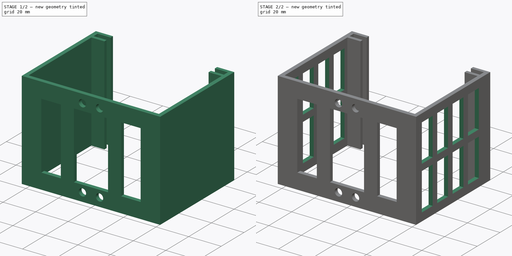
[diagram: build sequence overview — one tinted view per stage of 2, left to right]
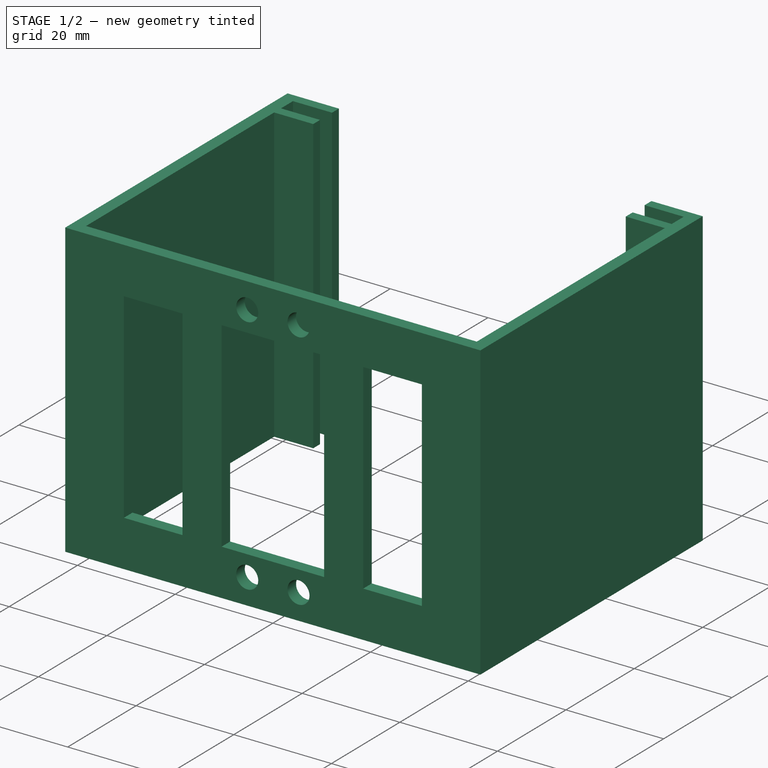
[diagram: stage 1 of 2 — iso view after this stage's code; geometry added in this stage tinted green]
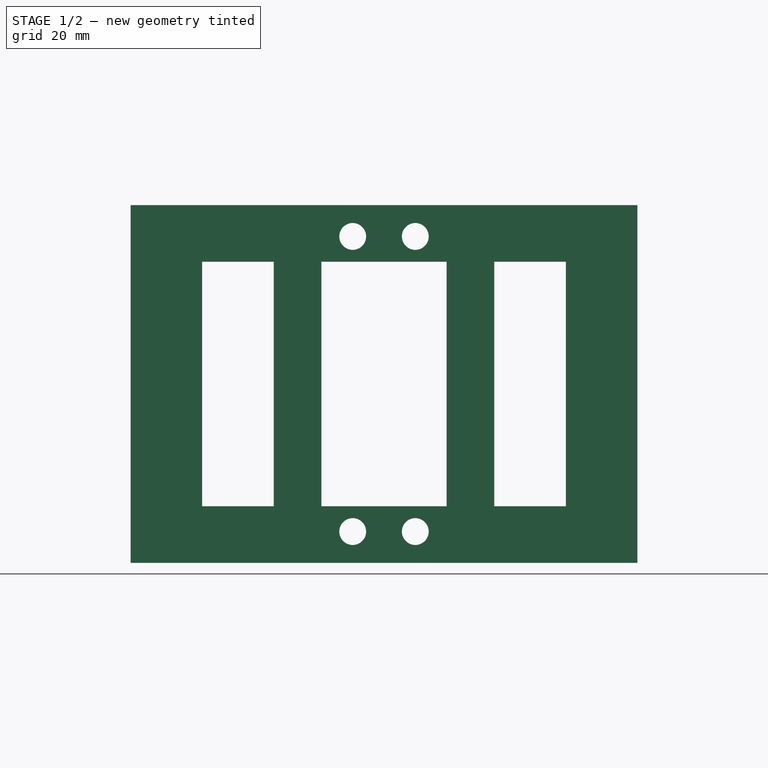
[diagram: stage 1 of 2 — front view after this stage's code; geometry added in this stage tinted green]
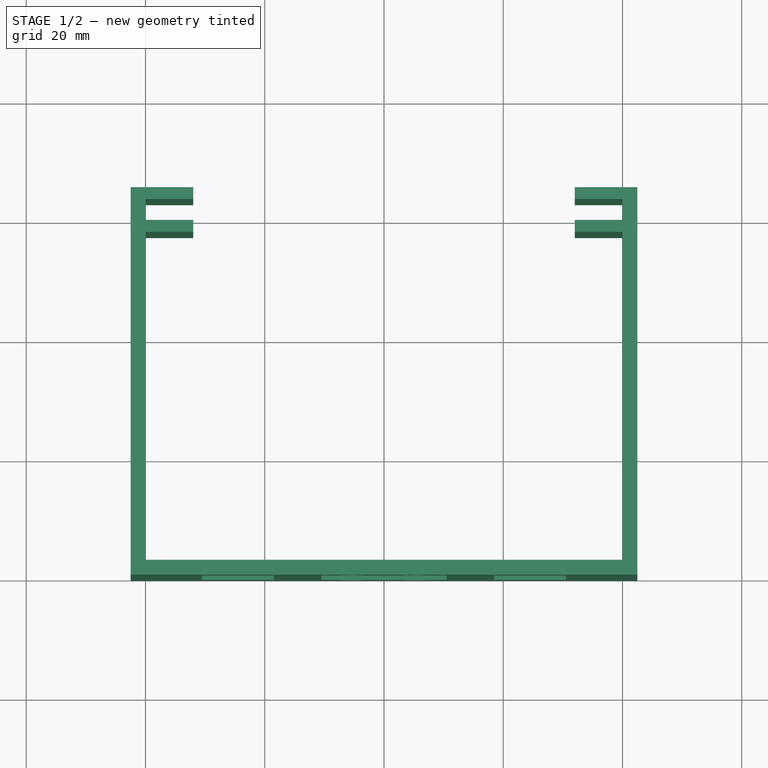
[diagram: stage 1 of 2 — top view after this stage's code; geometry added in this stage tinted green]
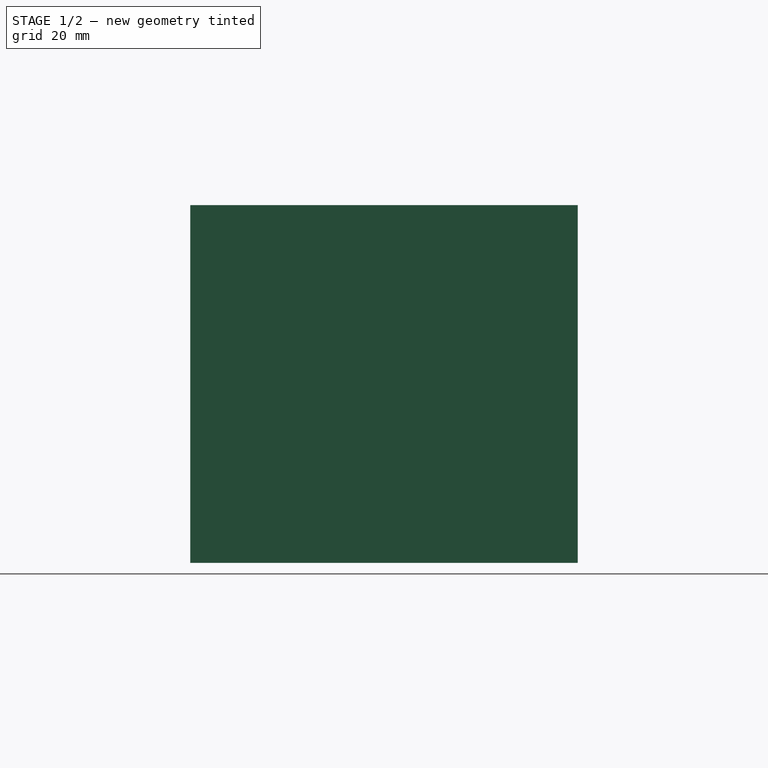
[diagram: stage 1 of 2 — right view after this stage's code; geometry added in this stage tinted green]
FCSTD DOCUMENT  (FreeCAD 0.18R16093 (Git))
Label: motor support
License: All rights reserved
LicenseURL: http://en.wikipedia.org/wiki/All_rights_reserved
objects: Sketcher::SketchObject×3, PartDesign::Pocket×2, PartDesign::Pad×1, PartDesign::Body×1
note: 10 computed .brp shape members not serialized (recipe doc carries the construction recipe); baked Part::Feature solids carry a one-line shape summary decoded from their .brp

FEATURE [Sketcher::SketchObject] Sketch001
  MapMode = 2
  Placement = pos=(0,0,0) rot=(0,0,1;3.14159rad)
  sketch-geometry (21):
    g0: LineSegment StartX=-42.5 StartY=0 StartZ=0 EndX=-42.5 EndY=-65 EndZ=0
    g1: LineSegment StartX=-42.5 StartY=-65 StartZ=0 EndX=-32 EndY=-65 EndZ=0
    g2: LineSegment StartX=-32 StartY=-65 StartZ=0 EndX=-32 EndY=-63 EndZ=0
    g3: LineSegment StartX=-32 StartY=-63 StartZ=0 EndX=-40 EndY=-63 EndZ=0
    g4: LineSegment StartX=-40 StartY=-63 StartZ=0 EndX=-40 EndY=-59.5 EndZ=0
    g5: LineSegment StartX=-40 StartY=-59.5 StartZ=0 EndX=-32 EndY=-59.5 EndZ=0
    g6: LineSegment StartX=-32 StartY=-59.5 StartZ=0 EndX=-32 EndY=-57.5 EndZ=0
    g7: LineSegment StartX=-32 StartY=-57.5 StartZ=0 EndX=-40 EndY=-57.5 EndZ=0
    g8: LineSegment StartX=42.5 StartY=0 StartZ=0 EndX=42.5 EndY=-65 EndZ=0
    g9: LineSegment StartX=42.5 StartY=-65 StartZ=0 EndX=32 EndY=-65 EndZ=0
    g10: LineSegment StartX=32 StartY=-65 StartZ=0 EndX=32 EndY=-63 EndZ=0
    g11: LineSegment StartX=32 StartY=-63 StartZ=0 EndX=40 EndY=-63 EndZ=0
    g12: LineSegment StartX=40 StartY=-63 StartZ=0 EndX=40 EndY=-59.5 EndZ=0
    g13: LineSegment StartX=40 StartY=-59.5 StartZ=0 EndX=32 EndY=-59.5 EndZ=0
    g14: LineSegment StartX=32 StartY=-59.5 StartZ=0 EndX=32 EndY=-57.5 EndZ=0
    g15: LineSegment StartX=32 StartY=-57.5 StartZ=0 EndX=40 EndY=-57.5 EndZ=0
    g16: LineSegment StartX=-40 StartY=-57.5 StartZ=0 EndX=-40 EndY=-2.5 EndZ=0
    g17: LineSegment StartX=40 StartY=-2.5 StartZ=0 EndX=40 EndY=-57.5 EndZ=0
    g18: LineSegment StartX=-42.5 StartY=0 StartZ=0 EndX=42.5 EndY=0 EndZ=0
    g19: LineSegment StartX=-40 StartY=-2.5 StartZ=0 EndX=0 EndY=-2.5 EndZ=0
    g20: LineSegment StartX=0 StartY=-2.5 StartZ=0 EndX=40 EndY=-2.5 EndZ=0
  constraints (63):
    c: PointOnObject(g0,g-1)
    c: Vertical(g0)
    c: Coincident(g0,g1)
    c: Horizontal(g1)
    c: Coincident(g1,g2)
    c: Vertical(g2)
    c: Coincident(g2,g3)
    c: Horizontal(g3)
    c: Coincident(g3,g4)
    c: Vertical(g4)
    c: Coincident(g4,g5)
    c: Horizontal(g5)
    c: Coincident(g5,g6)
    c: Vertical(g6)
    c: Coincident(g6,g7)
    c: Horizontal(g7)
    c: PointOnObject(g8,g-1)
    c: Vertical(g8)
    c: Coincident(g8,g9)
    c: Horizontal(g9)
    c: Coincident(g9,g10)
    c: Vertical(g10)
    c: Coincident(g10,g11)
    c: Horizontal(g11)
    c: Coincident(g11,g12)
    c: Coincident(g12,g13)
    c: Horizontal(g13)
    c: Coincident(g13,g14)
    c: Vertical(g14)
    c: Coincident(g14,g15)
    c: Horizontal(g15)
    c: Equal(g8,g0)
    c: Equal(g14,g10)
    c: Equal(g10,g2)
    c: Equal(g2,g6)
    c: Equal(g15,g13)
    c: Equal(g13,g11)
    c: Equal(g11,g7)
    c: Equal(g7,g5)
    c: Equal(g5,g3)
    c: Equal(g1,g9)
    c: DistanceY(g12,g12) = 3.5
    c: DistanceX(g15,g15) = 8
    c: Equal(g4,g12)
    c: Vertical(g12)
    c: Coincident(g7,g16)
    c: Vertical(g16)
    c: Coincident(g17,g15)
    c: Vertical(g17)
    c: Coincident(g18,g0)
    c: Coincident(g18,g8)
    c: Coincident(g16,g19)
    c: PointOnObject(g19,g-2)
    c: Horizontal(g19)
    c: Coincident(g19,g20)
    c: Coincident(g20,g17)
    c: Horizontal(g20)
    c: Equal(g20,g19)
    c: DistanceY(g14,g14) = 2
    c: DistanceX(g0,g16) = 2.5
    c: DistanceY(g16,g0) = 2.5
    c: DistanceY(g17,g17) = 55
    c: DistanceX(g16,g17) = 80
FEATURE [PartDesign::Pad] Pad
  Length = 60
  Length2 = 100
  Placement = pos=(0,0,0) rot=(0,0,1;3.14159rad)
  Profile = -> Sketch001
  Type = 0
FEATURE [Sketcher::SketchObject] Sketch
  AttachmentOffset = pos=(0,30,0) rot=(0,0,1;0rad)
  MapMode = 5
  Placement = pos=(0,6.7e-15,30) rot=(1,0,0;1.5708rad)
  Support = -> [Pad]
  expr: Constraints[43] = 4.5 / 2
  sketch-geometry (26):
    g0: LineSegment StartX=10.5 StartY=20.5 StartZ=0 EndX=10.5 EndY=-20.5 EndZ=0
    g1: LineSegment StartX=10.5 StartY=-20.5 StartZ=0 EndX=-10.5 EndY=-20.5 EndZ=0
    g2: LineSegment StartX=-10.5 StartY=-20.5 StartZ=0 EndX=-10.5 EndY=0 EndZ=0
    g3: LineSegment StartX=-10.5 StartY=0 StartZ=0 EndX=-10.5 EndY=20.5 EndZ=0
    g4: LineSegment StartX=-10.5 StartY=20.5 StartZ=0 EndX=0 EndY=20.5 EndZ=0
    g5: LineSegment StartX=0 StartY=20.5 StartZ=0 EndX=10.5 EndY=20.5 EndZ=0
    g6: LineSegment [constr] StartX=5.25 StartY=24.75 StartZ=0 EndX=5.25 EndY=-24.75 EndZ=0
    g7: LineSegment [constr] StartX=5.25 StartY=-24.75 StartZ=0 EndX=-5.25 EndY=-24.75 EndZ=0
    g8: LineSegment [constr] StartX=-5.25 StartY=-24.75 StartZ=0 EndX=-5.25 EndY=0 EndZ=0
    g9: LineSegment [constr] StartX=-5.25 StartY=0 StartZ=0 EndX=-5.25 EndY=24.75 EndZ=0
    g10: LineSegment [constr] StartX=-5.25 StartY=24.75 StartZ=0 EndX=0 EndY=24.75 EndZ=0
    g11: LineSegment [constr] StartX=0 StartY=24.75 StartZ=0 EndX=5.25 EndY=24.75 EndZ=0
    g12: Circle CenterX=-5.25 CenterY=24.75 CenterZ=0 NormalX=0 NormalY=0 NormalZ=1 AngleXU=0 Radius=2.25
    g13: Circle CenterX=-5.25 CenterY=-24.75 CenterZ=0 NormalX=0 NormalY=0 NormalZ=1 AngleXU=0 Radius=2.25
    g14: Circle CenterX=5.25 CenterY=-24.75 CenterZ=0 NormalX=0 NormalY=0 NormalZ=1 AngleXU=0 Radius=2.25
    g15: Circle CenterX=5.25 CenterY=24.75 CenterZ=0 NormalX=0 NormalY=0 NormalZ=1 AngleXU=0 Radius=2.25
    g16: LineSegment StartX=-30.5 StartY=20.5 StartZ=0 EndX=-18.5 EndY=20.5 EndZ=0
    g17: LineSegment StartX=-18.5 StartY=20.5 StartZ=0 EndX=-18.5 EndY=-20.5 EndZ=0
    g18: LineSegment StartX=-18.5 StartY=-20.5 StartZ=0 EndX=-30.5 EndY=-20.5 EndZ=0
    g19: LineSegment StartX=-30.5 StartY=-20.5 StartZ=0 EndX=-30.5 EndY=20.5 EndZ=0
    g20: LineSegment StartX=18.5 StartY=20.5 StartZ=0 EndX=30.5 EndY=20.5 EndZ=0
    g21: LineSegment StartX=30.5 StartY=20.5 StartZ=0 EndX=30.5 EndY=-20.5 EndZ=0
    g22: LineSegment StartX=30.5 StartY=-20.5 StartZ=0 EndX=18.5 EndY=-20.5 EndZ=0
    g23: LineSegment StartX=18.5 StartY=-20.5 StartZ=0 EndX=18.5 EndY=20.5 EndZ=0
    g24: LineSegment [constr] StartX=-10.5 StartY=20.5 StartZ=0 EndX=-18.5 EndY=20.5 EndZ=0
    g25: LineSegment [constr] StartX=10.5 StartY=20.5 StartZ=0 EndX=18.5 EndY=20.5 EndZ=0
  constraints (72):
    c: Coincident(g0,g1)
    c: Horizontal(g1)
    c: Vertical(g0)
    c: Coincident(g1,g2)
    c: Vertical(g2)
    c: Coincident(g2,g3)
    c: Vertical(g3)
    c: Coincident(g3,g4)
    c: Horizontal(g4)
    c: Coincident(g4,g5)
    c: Coincident(g5,g0)
    c: Horizontal(g5)
    c: PointOnObject(g4,g-2)
    c: PointOnObject(g2,g-1)
    c: Equal(g4,g5)
    c: Equal(g3,g2)
    c: DistanceX(g1,g1) = 21
    c: DistanceY(g0,g0) = 41
    c: Coincident(g6,g7)
    c: Horizontal(g7)
    c: Vertical(g6)
    c: DistanceY(g6,g6) = 49.5
    c: DistanceX(g7,g7) = 10.5
    c: Coincident(g7,g8)
    c: Vertical(g8)
    c: Coincident(g8,g9)
    c: Vertical(g9)
    c: Coincident(g9,g10)
    c: Horizontal(g10)
    c: Coincident(g10,g11)
    c: Coincident(g11,g6)
    c: Horizontal(g11)
    c: Equal(g10,g11)
    c: PointOnObject(g10,g-2)
    c: Equal(g9,g8)
    c: PointOnObject(g8,g-1)
    c: Coincident(g12,g9)
    c: Coincident(g13,g7)
    c: Coincident(g14,g6)
    c: Coincident(g15,g6)
    c: Equal(g15,g12)
    c: Equal(g12,g13)
    c: Equal(g13,g14)
    c: Radius(g14) = 2.25
    c: Coincident(g16,g17)
    c: Coincident(g17,g18)
    c: Coincident(g18,g19)
    c: Coincident(g19,g16)
    c: Horizontal(g16)
    c: Horizontal(g18)
    c: Vertical(g17)
    c: Vertical(g19)
    c: Coincident(g20,g21)
    c: Coincident(g21,g22)
    c: Coincident(g22,g23)
    c: Coincident(g23,g20)
    c: Horizontal(g20)
    c: Horizontal(g22)
    c: Vertical(g21)
    c: Vertical(g23)
    c: Coincident(g24,g3)
    c: Horizontal(g24)
    c: Coincident(g25,g0)
    c: Horizontal(g25)
    c: Coincident(g25,g20)
    c: Coincident(g16,g24)
    c: Equal(g24,g25)
    c: Equal(g20,g16)
    c: Equal(g17,g23)
    c: DistanceX(g24,g24) = 8
    c: DistanceX(g16,g16) = 12
    c: Equal(g0,g23)
FEATURE [PartDesign::Pocket] Pocket
  BaseFeature = -> Pad
  Length = 3
  Length2 = 100
  Placement = pos=(0,0,0) rot=(0,0,1;3.14159rad)
  Profile = -> Sketch
  Type = 0
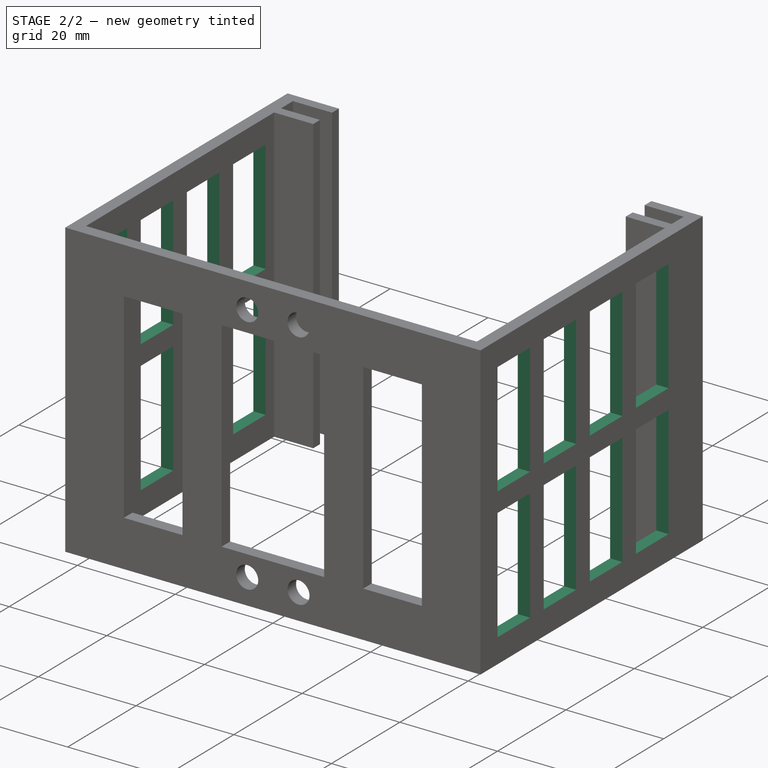
[diagram: stage 2 of 2 — iso view after this stage's code; geometry added in this stage tinted green]
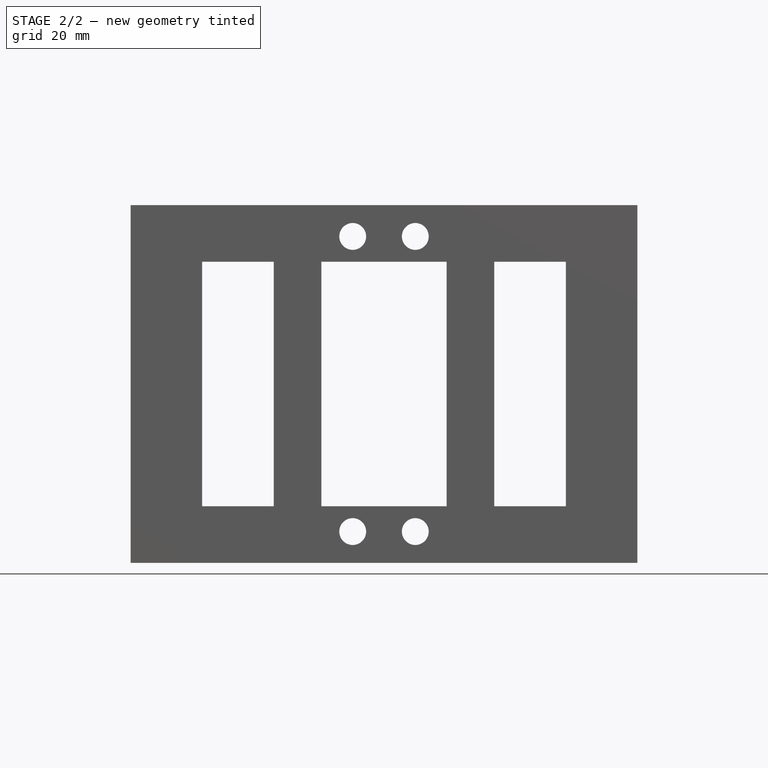
[diagram: stage 2 of 2 — front view after this stage's code; geometry added in this stage tinted green]
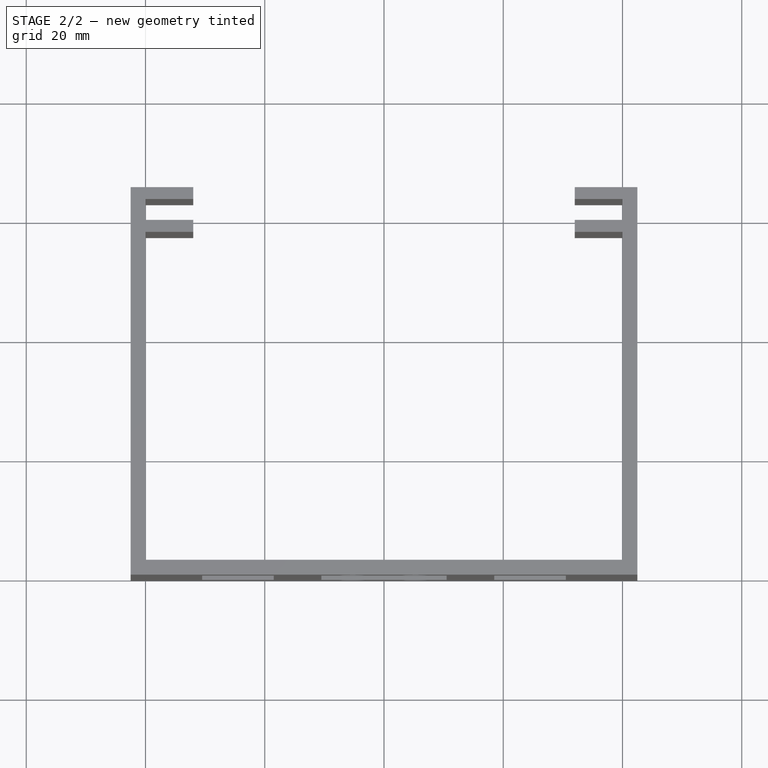
[diagram: stage 2 of 2 — top view after this stage's code; geometry added in this stage tinted green]
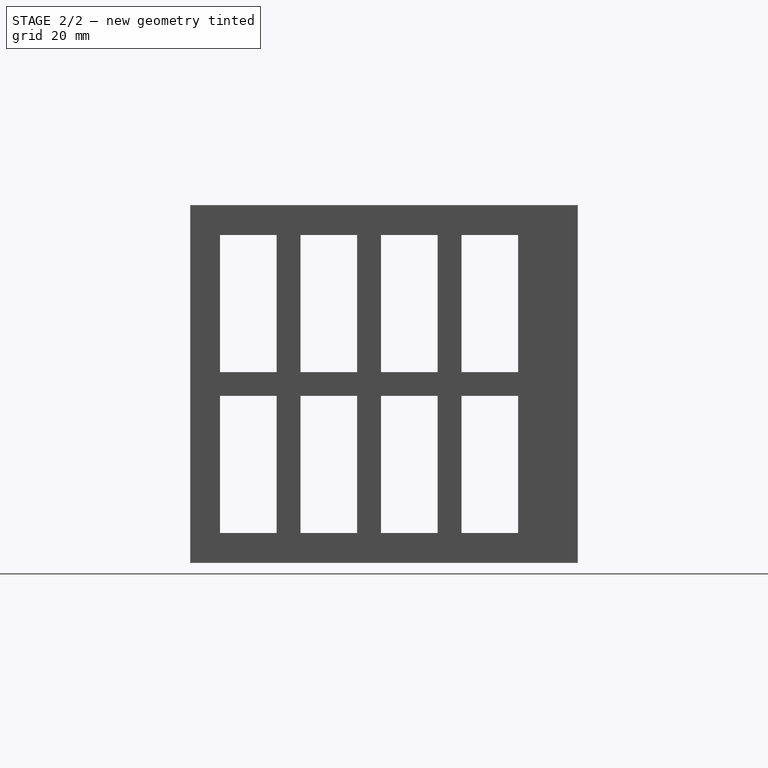
[diagram: stage 2 of 2 — right view after this stage's code; geometry added in this stage tinted green]
FEATURE [Sketcher::SketchObject] Sketch002
  MapMode = 5
  Placement = pos=(-42.5,-1.04e-14,0) rot=(0.57735,-0.57735,-0.57735;2.0944rad)
  Support = -> [Pocket]
  sketch-geometry (41):
    g0: LineSegment StartX=-5 StartY=28 StartZ=0 EndX=-14.5 EndY=28 EndZ=0
    g1: LineSegment StartX=-14.5 StartY=28 StartZ=0 EndX=-14.5 EndY=5 EndZ=0
    g2: LineSegment StartX=-14.5 StartY=5 StartZ=0 EndX=-5 EndY=5 EndZ=0
    g3: LineSegment StartX=-5 StartY=5 StartZ=0 EndX=-5 EndY=28 EndZ=0
    g4: LineSegment [constr] StartX=0 StartY=0 StartZ=0 EndX=-5 EndY=0 EndZ=0
    g5: LineSegment [constr] StartX=-5 StartY=0 StartZ=0 EndX=-5 EndY=5 EndZ=0
    g6: LineSegment StartX=-18.5 StartY=28 StartZ=0 EndX=-28 EndY=28 EndZ=0
    g7: LineSegment StartX=-28 StartY=28 StartZ=0 EndX=-28 EndY=5 EndZ=0
    g8: LineSegment StartX=-28 StartY=5 StartZ=0 EndX=-18.5 EndY=5 EndZ=0
    g9: LineSegment StartX=-18.5 StartY=5 StartZ=0 EndX=-18.5 EndY=28 EndZ=0
    g10: LineSegment [constr] StartX=-14.5 StartY=28 StartZ=0 EndX=-18.5 EndY=28 EndZ=0
    g11: LineSegment StartX=-5 StartY=55 StartZ=0 EndX=-14.5 EndY=55 EndZ=0
    g12: LineSegment StartX=-14.5 StartY=55 StartZ=0 EndX=-14.5 EndY=32 EndZ=0
    g13: LineSegment StartX=-14.5 StartY=32 StartZ=0 EndX=-5 EndY=32 EndZ=0
    g14: LineSegment StartX=-5 StartY=32 StartZ=0 EndX=-5 EndY=55 EndZ=0
    g15: LineSegment StartX=-18.5 StartY=55 StartZ=0 EndX=-28 EndY=55 EndZ=0
    g16: LineSegment StartX=-28 StartY=55 StartZ=0 EndX=-28 EndY=32 EndZ=0
    g17: LineSegment StartX=-28 StartY=32 StartZ=0 EndX=-18.5 EndY=32 EndZ=0
    g18: LineSegment StartX=-18.5 StartY=32 StartZ=0 EndX=-18.5 EndY=55 EndZ=0
    g19: LineSegment StartX=-32 StartY=55 StartZ=0 EndX=-41.5 EndY=55 EndZ=0
    g20: LineSegment StartX=-41.5 StartY=55 StartZ=0 EndX=-41.5 EndY=32 EndZ=0
    g21: LineSegment StartX=-41.5 StartY=32 StartZ=0 EndX=-32 EndY=32 EndZ=0
    g22: LineSegment StartX=-32 StartY=32 StartZ=0 EndX=-32 EndY=55 EndZ=0
    g23: LineSegment StartX=-45.5 StartY=55 StartZ=0 EndX=-55 EndY=55 EndZ=0
    g24: LineSegment StartX=-55 StartY=55 StartZ=0 EndX=-55 EndY=32 EndZ=0
    g25: LineSegment StartX=-55 StartY=32 StartZ=0 EndX=-45.5 EndY=32 EndZ=0
    g26: LineSegment StartX=-45.5 StartY=32 StartZ=0 EndX=-45.5 EndY=55 EndZ=0
    g27: LineSegment StartX=-32 StartY=28 StartZ=0 EndX=-41.5 EndY=28 EndZ=0
    g28: LineSegment StartX=-41.5 StartY=28 StartZ=0 EndX=-41.5 EndY=5 EndZ=0
    g29: LineSegment StartX=-41.5 StartY=5 StartZ=0 EndX=-32 EndY=5 EndZ=0
    g30: LineSegment StartX=-32 StartY=5 StartZ=0 EndX=-32 EndY=28 EndZ=0
    g31: LineSegment StartX=-45.5 StartY=28 StartZ=0 EndX=-55 EndY=28 EndZ=0
    g32: LineSegment StartX=-55 StartY=28 StartZ=0 EndX=-55 EndY=5 EndZ=0
    g33: LineSegment StartX=-55 StartY=5 StartZ=0 EndX=-45.5 EndY=5 EndZ=0
    g34: LineSegment StartX=-45.5 StartY=5 StartZ=0 EndX=-45.5 EndY=28 EndZ=0
    g35: LineSegment [constr] StartX=-28 StartY=28 StartZ=0 EndX=-32 EndY=28 EndZ=0
    g36: LineSegment [constr] StartX=-41.5 StartY=28 StartZ=0 EndX=-45.5 EndY=28 EndZ=0
    g37: LineSegment [constr] StartX=-14.5 StartY=32 StartZ=0 EndX=-18.5 EndY=32 EndZ=0
    g38: LineSegment [constr] StartX=-32 StartY=32 StartZ=0 EndX=-28 EndY=32 EndZ=0
    g39: LineSegment [constr] StartX=-41.5 StartY=32 StartZ=0 EndX=-45.5 EndY=32 EndZ=0
    g40: LineSegment [constr] StartX=-5 StartY=28 StartZ=0 EndX=-5 EndY=32 EndZ=0
  constraints (115):
    c: Coincident(g0,g1)
    c: Coincident(g1,g2)
    c: Coincident(g2,g3)
    c: Coincident(g3,g0)
    c: Horizontal(g0)
    c: Horizontal(g2)
    c: Vertical(g1)
    c: Vertical(g3)
    c: Coincident(g-1,g4)
    c: PointOnObject(g4,g-1)
    c: Coincident(g4,g5)
    c: Coincident(g5,g2)
    c: Vertical(g5)
    c: Equal(g5,g4)
    c: DistanceX(g4,g4) = 5
    c: Coincident(g6,g7)
    c: Coincident(g7,g8)
    c: Coincident(g8,g9)
    c: Coincident(g9,g6)
    c: Horizontal(g6)
    c: Horizontal(g8)
    c: Vertical(g7)
    c: Vertical(g9)
    c: Equal(g9,g1)
    c: Equal(g6,g0)
    c: Coincident(g10,g0)
    c: Coincident(g10,g6)
    c: Horizontal(g10)
    c: Coincident(g11,g12)
    c: Coincident(g12,g13)
    c: Coincident(g13,g14)
    c: Coincident(g14,g11)
    c: Horizontal(g11)
    c: Horizontal(g13)
    c: Vertical(g12)
    c: Vertical(g14)
    c: Coincident(g15,g16)
    c: Coincident(g16,g17)
    c: Coincident(g17,g18)
    c: Coincident(g18,g15)
    c: Horizontal(g15)
    c: Horizontal(g17)
    c: Vertical(g16)
    c: Vertical(g18)
    c: Coincident(g19,g20)
    c: Coincident(g20,g21)
    c: Coincident(g21,g22)
    c: Coincident(g22,g19)
    c: Horizontal(g19)
    c: Horizontal(g21)
    c: Vertical(g20)
    c: Vertical(g22)
    c: Coincident(g23,g24)
    c: Coincident(g24,g25)
    c: Coincident(g25,g26)
    c: Coincident(g26,g23)
    c: Horizontal(g23)
    c: Horizontal(g25)
    c: Vertical(g24)
    c: Vertical(g26)
    c: Coincident(g27,g28)
    c: Coincident(g28,g29)
    c: Coincident(g29,g30)
    c: Coincident(g30,g27)
    c: Horizontal(g27)
    c: Horizontal(g29)
    c: Vertical(g28)
    c: Vertical(g30)
    c: Coincident(g31,g32)
    c: Coincident(g32,g33)
    c: Coincident(g33,g34)
    c: Coincident(g34,g31)
    c: Horizontal(g31)
    c: Horizontal(g33)
    c: Vertical(g32)
    c: Vertical(g34)
    c: Equal(g6,g27)
    c: Equal(g27,g31)
    c: Equal(g31,g25)
    c: Equal(g25,g21)
    c: Equal(g21,g17)
    c: Equal(g17,g13)
    c: Equal(g12,g7)
    c: Equal(g7,g30)
    c: Equal(g30,g34)
    c: Equal(g34,g26)
    c: Equal(g26,g22)
    c: Equal(g22,g18)
    c: Coincident(g35,g6)
    c: Coincident(g35,g27)
    c: Coincident(g36,g27)
    c: Coincident(g36,g31)
    c: Coincident(g37,g12)
    c: Coincident(g37,g17)
    c: Coincident(g38,g21)
    c: Coincident(g38,g16)
    c: Coincident(g39,g20)
    c: Coincident(g39,g25)
    c: Horizontal(g39)
    c: Horizontal(g38)
    c: Horizontal(g37)
    c: Horizontal(g35)
    c: Horizontal(g36)
    c: Equal(g35,g36)
    c: Equal(g36,g39)
    c: Equal(g39,g38)
    c: Equal(g38,g37)
    c: Equal(g37,g10)
    c: Coincident(g40,g0)
    c: Coincident(g40,g13)
    c: Vertical(g40)
    c: DistanceY(g2,g11) = 50
    c: DistanceX(g32,g2) = 50
    c: DistanceX(g10,g10) = 4
    c: DistanceY(g40,g40) = 4
FEATURE [PartDesign::Pocket] Pocket001
  BaseFeature = -> Pocket
  Length = 5
  Length2 = 100
  Placement = pos=(0,0,0) rot=(0,0,1;3.14159rad)
  Profile = -> Sketch002
  Type = 1
FEATURE [PartDesign::Body] Body
  Group = -> [Sketch,Sketch001,Pad,Pocket,Sketch002,Pocket001]
  Origin = -> Origin
  Tip = -> Pocket001
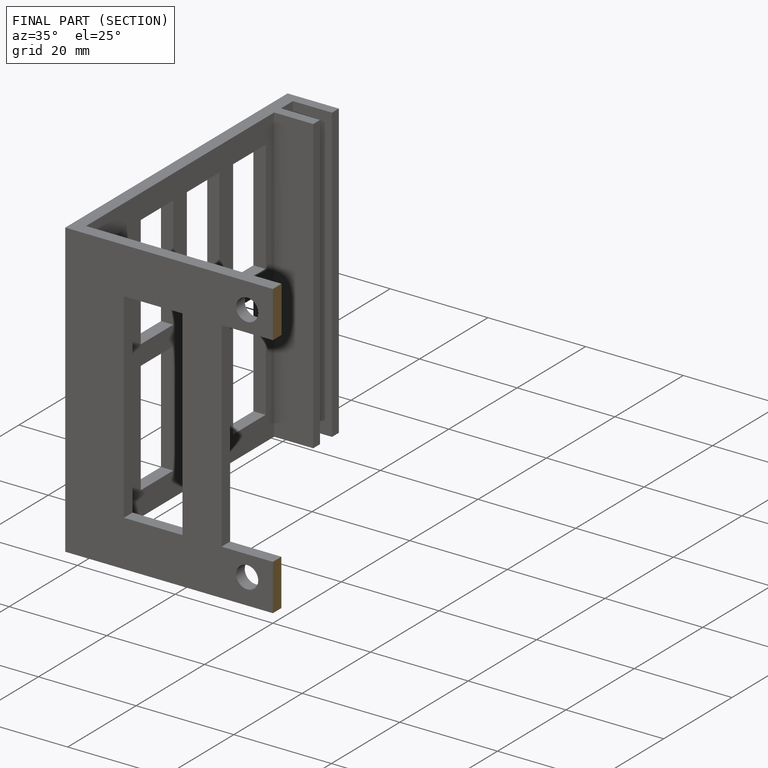
[diagram: finished part — half-section view (interior)]
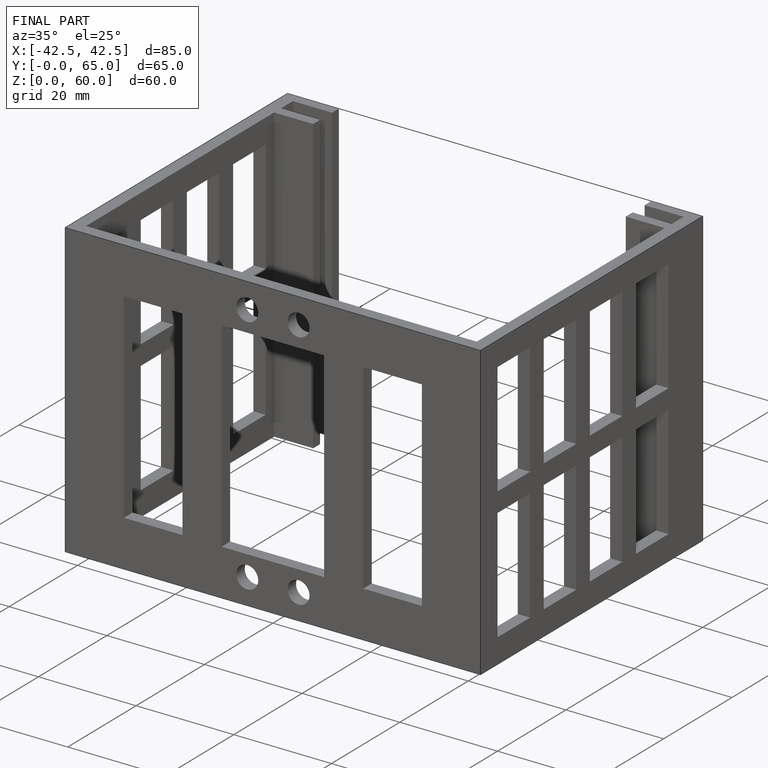
[diagram: finished part — iso view with bounding-box wireframe]
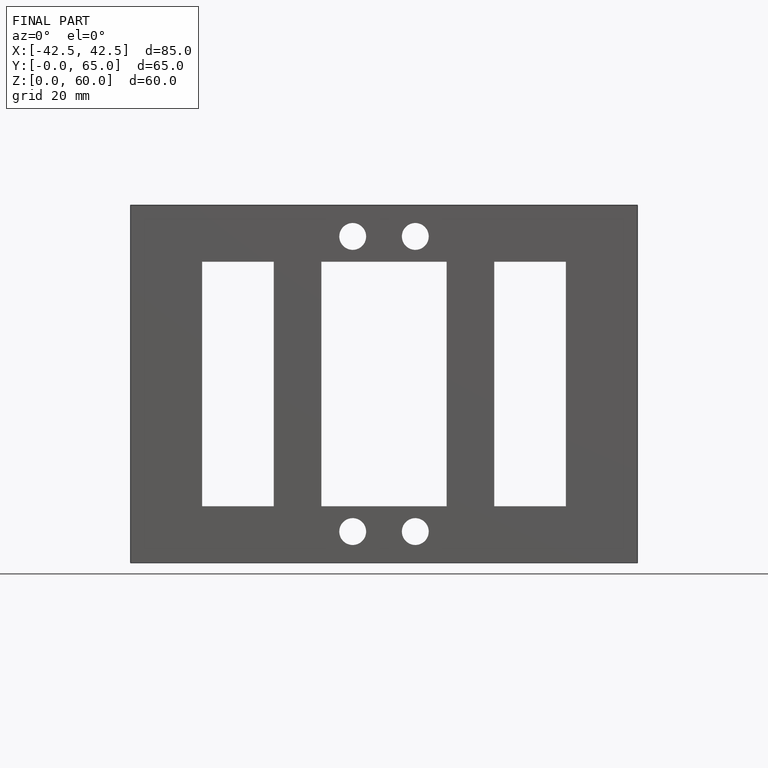
[diagram: finished part — front view with bounding-box wireframe]
